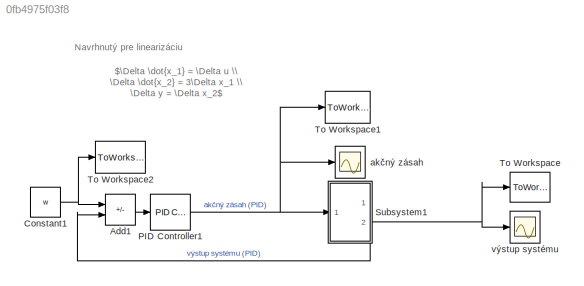
MODEL slx_0fb4975f03f8
KIND model
CONFIG AbsTol = auto
CONFIG EnableMultiTasking = off
CONFIG FixedStep = auto
CONFIG MaxStep = auto
CONFIG MinStep = auto
CONFIG RelTol = 1e-3
CONFIG SampleTimeConstraint = Unconstrained
CONFIG Solver = VariableStepAuto
CONFIG SolverName = VariableStepAuto
CONFIG StartTime = 0.0
CONFIG StopTime = 10.0
BLOCK [Sum] Add1
  IconShape = rectangular
  Inputs = +-
  Ports = [2, 1]
BLOCK [Constant] Constant1
  Value = w
BLOCK [Reference] PID Controller1  REF=simulink/Continuous/PID Controller
  Ports = [1, 1]
  SourceBlock = simulink/Continuous/PID Controller
  SourceProductBaseCode = SL
  SourceType = PID 1dof
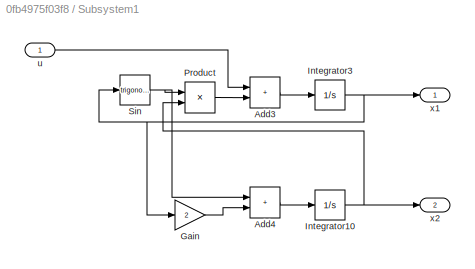
BLOCK [SubSystem] Subsystem1
  Ports = [1, 2]
  RequestExecContextInheritance = off
BLOCK [Sum] Subsystem1/Add3
  IconShape = rectangular
  Ports = [2, 1]
BLOCK [Sum] Subsystem1/Add4
  IconShape = rectangular
  Ports = [2, 1]
BLOCK [Gain] Subsystem1/Gain
  Gain = 2
BLOCK [Integrator] Subsystem1/Integrator10
  Ports = [1, 1]
BLOCK [Integrator] Subsystem1/Integrator3
  Ports = [1, 1]
BLOCK [Product] Subsystem1/Product
  Ports = [2, 1]
BLOCK [Trigonometry] Subsystem1/Sin
  Ports = [1, 1]
BLOCK [Inport] Subsystem1/u
BLOCK [Outport] Subsystem1/x1
BLOCK [Outport] Subsystem1/x2
  Port = 2
BLOCK [ToWorkspace] To Workspace
  FixptAsFi = on
  MaxDataPoints = inf
  Ports = [1]
  SampleTime = -1
  SaveFormat = Timeseries
  VariableName = y
BLOCK [ToWorkspace] To Workspace1
  FixptAsFi = on
  MaxDataPoints = inf
  Ports = [1]
  SampleTime = -1
  SaveFormat = Timeseries
  VariableName = u
BLOCK [ToWorkspace] To Workspace2
  FixptAsFi = on
  MaxDataPoints = inf
  Ports = [1]
  SampleTime = -1
  SaveFormat = Timeseries
  VariableName = r
BLOCK [Scope] akčný zásah
  Floating = off
  NameLocation = top
  NumInputPorts = 1
  Ports = [1]
  ScopeSpecificationString = Simulink.scopes.TimeScopeBlockCfg('CurrentConfiguration', extmgr.ConfigurationSet(extmgr.Configuration('Core','General UI',true),extmgr.Configuration('Core','Source UI',true),extmgr.Configuration('Sources','WiredSimulink',true,'DataLoggingVariableName','ScopeData1'),extmgr.Configuration('Visuals','Time Domain',true,'SerializedDisplays',{struct('MinYLimReal','-76.824','MaxYLimReal','90.34423','YLab...<+1412ch>
BLOCK [Scope] výstup systému
  Floating = off
  NumInputPorts = 1
  Ports = [1]
  ScopeSpecificationString = Simulink.scopes.TimeScopeBlockCfg('CurrentConfiguration', extmgr.ConfigurationSet(extmgr.Configuration('Core','General UI',true),extmgr.Configuration('Core','Source UI',true),extmgr.Configuration('Sources','WiredSimulink',true),extmgr.Configuration('Visuals','Time Domain',true,'SerializedDisplays',{struct('MinYLimReal','-0.95166','MaxYLimReal','8.56497','YLabelReal','','MinYLimMag','0.00000','MaxY...<+1370ch>
ANNOTATION (root): Navrhnutý pre linearizáciu
ANNOTATION (root): $\Delta \dot{x_1} = \Delta u \\ \Delta \dot{x_2} = 3\Delta x_1 \\ \Delta y = \Delta x_2$
LINE Add1:1 -> PID Controller1:1
NET Constant1:1 -> Add1:1, To Workspace2:1
NET PID Controller1:1 -> Subsystem1:1, To Workspace1:1, akčný zásah:1
LINE Subsystem1/Add3:1 -> Subsystem1/Integrator3:1
LINE Subsystem1/Add4:1 -> Subsystem1/Integrator10:1
LINE Subsystem1/Gain:1 -> Subsystem1/Add4:2
NET Subsystem1/Integrator10:1 -> Subsystem1/Product:2, Subsystem1/x2:1
NET Subsystem1/Integrator3:1 -> Subsystem1/Gain:1, Subsystem1/Sin:1, Subsystem1/x1:1
LINE Subsystem1/Product:1 -> Subsystem1/Add3:2
NET Subsystem1/Sin:1 -> Subsystem1/Add4:1, Subsystem1/Product:1
LINE Subsystem1/u:1 -> Subsystem1/Add3:1
NET Subsystem1:2 -> Add1:2, To Workspace:1, výstup systému:1
note: NET lines group one-source signal fan-out (src -> all destinations, sorted); 1:1 wires keep LINE
